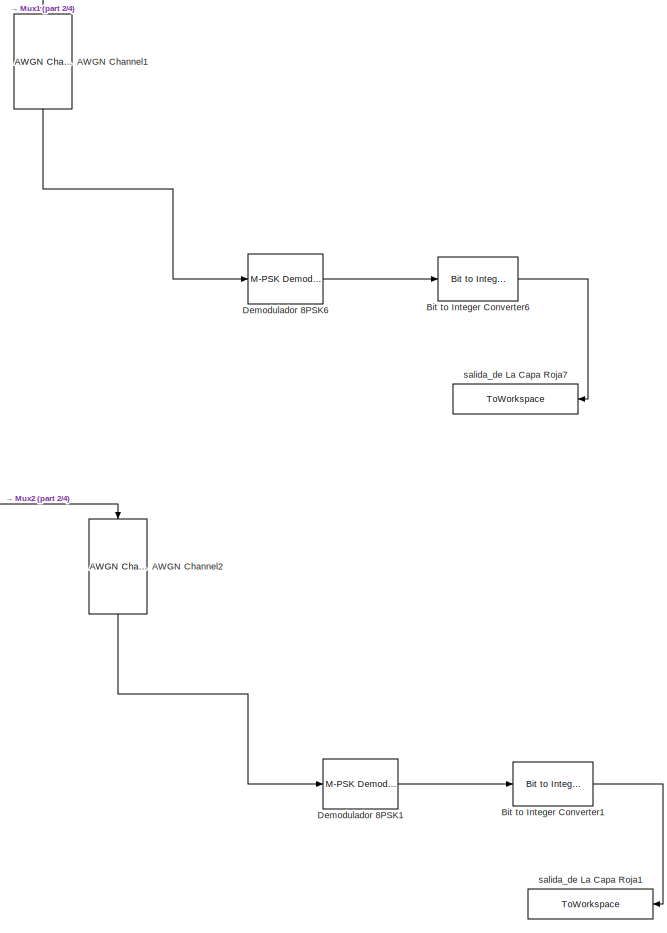
[diagram: root canvas - part 1/4, top right region]
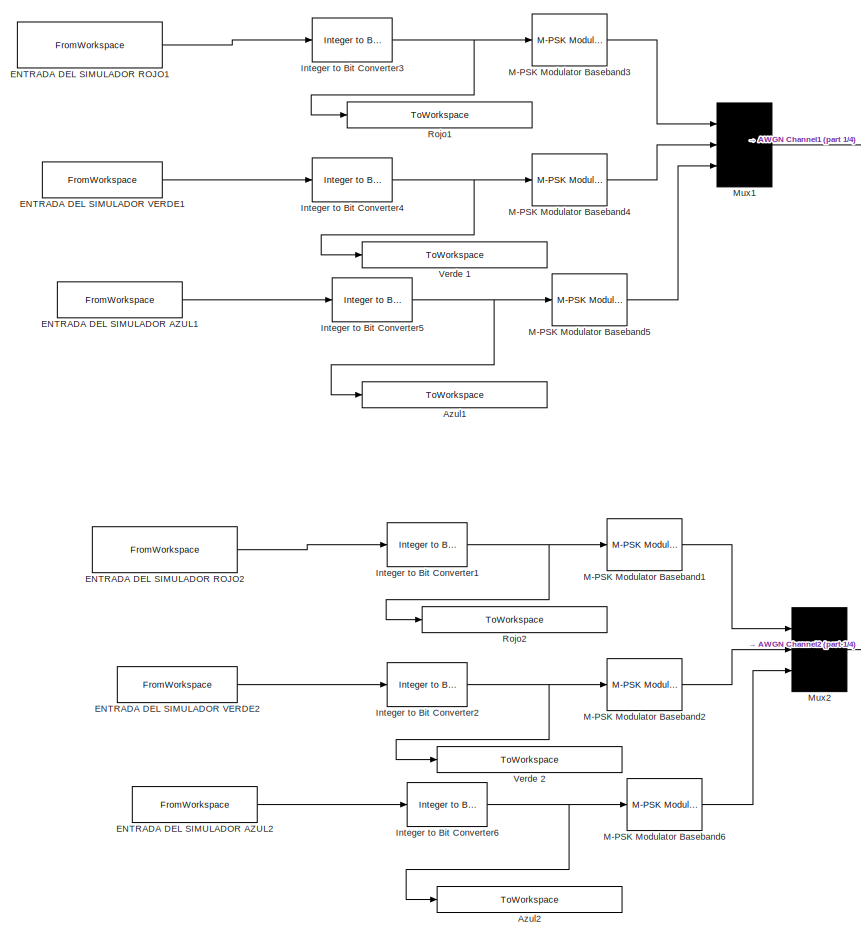
[diagram: root canvas - part 2/4, top left region]
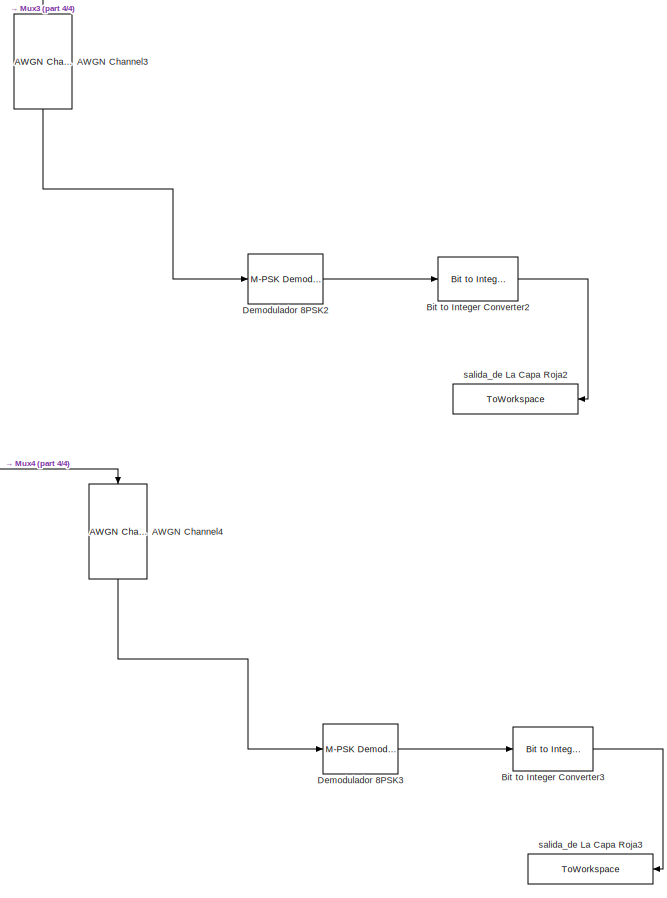
[diagram: root canvas - part 3/4, bottom right region]
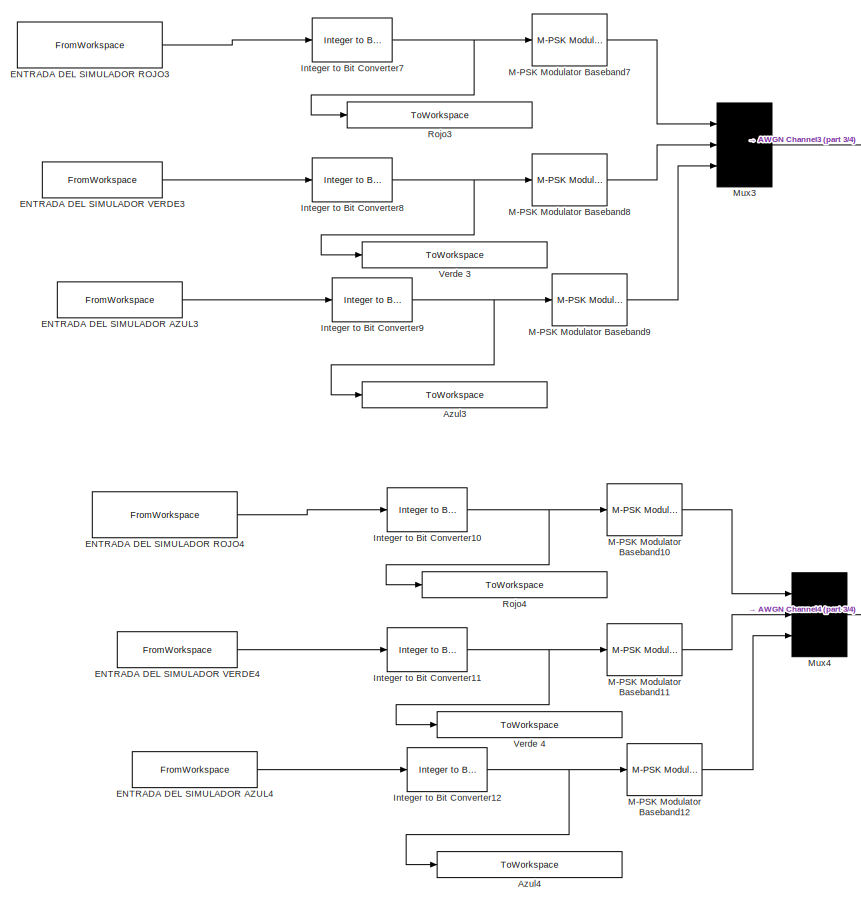
[diagram: root canvas - part 4/4, bottom left region]
MODEL slx_5f29112e5b61
KIND model
CONFIG AbsTol = auto
CONFIG FixedStep = auto
CONFIG MaxStep = auto
CONFIG MinStep = auto
CONFIG RelTol = 1e-3
CONFIG SampleTimeConstraint = Unconstrained
CONFIG Solver = VariableStepAuto
CONFIG SolverMode = Auto
CONFIG SolverName = VariableStepAuto
CONFIG StartTime = 0.0
CONFIG StopTime = 420800
BLOCK [Reference] AWGN Channel1  REF=commchan3/AWGN
Channel
  Ports = [1, 1]
  SourceBlock = commchan3/AWGN\nChannel
  SourceType = AWGN Channel
  UserDataPersistent = on
BLOCK [Reference] AWGN Channel2  REF=commchan3/AWGN
Channel
  Ports = [1, 1]
  SourceBlock = commchan3/AWGN\nChannel
  SourceType = AWGN Channel
  UserDataPersistent = on
BLOCK [Reference] AWGN Channel3  REF=commchan3/AWGN
Channel
  Ports = [1, 1]
  SourceBlock = commchan3/AWGN\nChannel
  SourceType = AWGN Channel
  UserDataPersistent = on
BLOCK [Reference] AWGN Channel4  REF=commchan3/AWGN
Channel
  Ports = [1, 1]
  SourceBlock = commchan3/AWGN\nChannel
  SourceType = AWGN Channel
  UserDataPersistent = on
BLOCK [ToWorkspace] Azul1
  FixptAsFi = on
  MaxDataPoints = inf
  Ports = [1]
  SampleTime = -1
  Save2DSignal = 2-D array (concatenate along first dimension)
  VariableName = Salida_Cuantificador_Azul1
BLOCK [ToWorkspace] Azul2
  FixptAsFi = on
  MaxDataPoints = inf
  Ports = [1]
  SampleTime = -1
  Save2DSignal = 2-D array (concatenate along first dimension)
  VariableName = Salida_Cuantificador_Azul
BLOCK [ToWorkspace] Azul3
  FixptAsFi = on
  MaxDataPoints = inf
  Ports = [1]
  SampleTime = -1
  Save2DSignal = 2-D array (concatenate along first dimension)
  VariableName = Salida_Cuantificador_Azul2
BLOCK [ToWorkspace] Azul4
  FixptAsFi = on
  MaxDataPoints = inf
  Ports = [1]
  SampleTime = -1
  Save2DSignal = 2-D array (concatenate along first dimension)
  VariableName = Salida_Cuantificador_Azul3
BLOCK [Reference] Bit to Integer Converter1  REF=commutil2/Bit to Integer
Converter
  Ports = [1, 1]
  SourceBlock = commutil2/Bit to Integer\nConverter
  SourceType = Bit to Integer Converter
BLOCK [Reference] Bit to Integer Converter2  REF=commutil2/Bit to Integer
Converter
  Ports = [1, 1]
  SourceBlock = commutil2/Bit to Integer\nConverter
  SourceType = Bit to Integer Converter
BLOCK [Reference] Bit to Integer Converter3  REF=commutil2/Bit to Integer
Converter
  Ports = [1, 1]
  SourceBlock = commutil2/Bit to Integer\nConverter
  SourceType = Bit to Integer Converter
BLOCK [Reference] Bit to Integer Converter6  REF=commutil2/Bit to Integer
Converter
  Ports = [1, 1]
  SourceBlock = commutil2/Bit to Integer\nConverter
  SourceType = Bit to Integer Converter
BLOCK [Reference] Demodulador 8PSK1  REF=commdigbbndpm3/M-PSK
Demodulator
Baseband
  Ports = [1, 1]
  SourceBlock = commdigbbndpm3/M-PSK\nDemodulator\nBaseband
  SourceType = M-PSK Demodulator Baseband
BLOCK [Reference] Demodulador 8PSK2  REF=commdigbbndpm3/M-PSK
Demodulator
Baseband
  Ports = [1, 1]
  SourceBlock = commdigbbndpm3/M-PSK\nDemodulator\nBaseband
  SourceType = M-PSK Demodulator Baseband
BLOCK [Reference] Demodulador 8PSK3  REF=commdigbbndpm3/M-PSK
Demodulator
Baseband
  Ports = [1, 1]
  SourceBlock = commdigbbndpm3/M-PSK\nDemodulator\nBaseband
  SourceType = M-PSK Demodulator Baseband
BLOCK [Reference] Demodulador 8PSK6  REF=commdigbbndpm3/M-PSK
Demodulator
Baseband
  Ports = [1, 1]
  SourceBlock = commdigbbndpm3/M-PSK\nDemodulator\nBaseband
  SourceType = M-PSK Demodulator Baseband
BLOCK [FromWorkspace] ENTRADA DEL SIMULADOR AZUL1
  OutputAfterFinalValue = Holding final value
  SampleTime = 1
  VariableName = Imagen_BEntrada
BLOCK [FromWorkspace] ENTRADA DEL SIMULADOR AZUL2
  OutputAfterFinalValue = Holding final value
  SampleTime = 1
  VariableName = Imagen_BEntrada
BLOCK [FromWorkspace] ENTRADA DEL SIMULADOR AZUL3
  OutputAfterFinalValue = Holding final value
  SampleTime = 1
  VariableName = Imagen_BEntrada
BLOCK [FromWorkspace] ENTRADA DEL SIMULADOR AZUL4
  OutputAfterFinalValue = Holding final value
  SampleTime = 1
  VariableName = Imagen_BEntrada
BLOCK [FromWorkspace] ENTRADA DEL SIMULADOR ROJO1
  OutputAfterFinalValue = Holding final value
  SampleTime = 1
  VariableName = Imagen_REntrada
BLOCK [FromWorkspace] ENTRADA DEL SIMULADOR ROJO2
  OutputAfterFinalValue = Holding final value
  SampleTime = 1
  VariableName = Imagen_REntrada
BLOCK [FromWorkspace] ENTRADA DEL SIMULADOR ROJO3
  OutputAfterFinalValue = Holding final value
  SampleTime = 1
  VariableName = Imagen_REntrada
BLOCK [FromWorkspace] ENTRADA DEL SIMULADOR ROJO4
  OutputAfterFinalValue = Holding final value
  SampleTime = 1
  VariableName = Imagen_REntrada
BLOCK [FromWorkspace] ENTRADA DEL SIMULADOR VERDE1
  OutputAfterFinalValue = Holding final value
  SampleTime = 1
  VariableName = Imagen_GEntrada
BLOCK [FromWorkspace] ENTRADA DEL SIMULADOR VERDE2
  OutputAfterFinalValue = Holding final value
  SampleTime = 1
  VariableName = Imagen_GEntrada
BLOCK [FromWorkspace] ENTRADA DEL SIMULADOR VERDE3
  OutputAfterFinalValue = Holding final value
  SampleTime = 1
  VariableName = Imagen_GEntrada
BLOCK [FromWorkspace] ENTRADA DEL SIMULADOR VERDE4
  OutputAfterFinalValue = Holding final value
  SampleTime = 1
  VariableName = Imagen_GEntrada
BLOCK [Reference] Integer to Bit Converter1  REF=commutil2/Integer to Bit
Converter
  Ports = [1, 1]
  SourceBlock = commutil2/Integer to Bit\nConverter
  SourceType = Integer to Bit Converter
BLOCK [Reference] Integer to Bit Converter10  REF=commutil2/Integer to Bit
Converter
  Ports = [1, 1]
  SourceBlock = commutil2/Integer to Bit\nConverter
  SourceType = Integer to Bit Converter
BLOCK [Reference] Integer to Bit Converter11  REF=commutil2/Integer to Bit
Converter
  Ports = [1, 1]
  SourceBlock = commutil2/Integer to Bit\nConverter
  SourceType = Integer to Bit Converter
BLOCK [Reference] Integer to Bit Converter12  REF=commutil2/Integer to Bit
Converter
  Ports = [1, 1]
  SourceBlock = commutil2/Integer to Bit\nConverter
  SourceType = Integer to Bit Converter
BLOCK [Reference] Integer to Bit Converter2  REF=commutil2/Integer to Bit
Converter
  Ports = [1, 1]
  SourceBlock = commutil2/Integer to Bit\nConverter
  SourceType = Integer to Bit Converter
BLOCK [Reference] Integer to Bit Converter3  REF=commutil2/Integer to Bit
Converter
  Ports = [1, 1]
  SourceBlock = commutil2/Integer to Bit\nConverter
  SourceType = Integer to Bit Converter
BLOCK [Reference] Integer to Bit Converter4  REF=commutil2/Integer to Bit
Converter
  Ports = [1, 1]
  SourceBlock = commutil2/Integer to Bit\nConverter
  SourceType = Integer to Bit Converter
BLOCK [Reference] Integer to Bit Converter5  REF=commutil2/Integer to Bit
Converter
  Ports = [1, 1]
  SourceBlock = commutil2/Integer to Bit\nConverter
  SourceType = Integer to Bit Converter
BLOCK [Reference] Integer to Bit Converter6  REF=commutil2/Integer to Bit
Converter
  Ports = [1, 1]
  SourceBlock = commutil2/Integer to Bit\nConverter
  SourceType = Integer to Bit Converter
BLOCK [Reference] Integer to Bit Converter7  REF=commutil2/Integer to Bit
Converter
  Ports = [1, 1]
  SourceBlock = commutil2/Integer to Bit\nConverter
  SourceType = Integer to Bit Converter
BLOCK [Reference] Integer to Bit Converter8  REF=commutil2/Integer to Bit
Converter
  Ports = [1, 1]
  SourceBlock = commutil2/Integer to Bit\nConverter
  SourceType = Integer to Bit Converter
BLOCK [Reference] Integer to Bit Converter9  REF=commutil2/Integer to Bit
Converter
  Ports = [1, 1]
  SourceBlock = commutil2/Integer to Bit\nConverter
  SourceType = Integer to Bit Converter
BLOCK [Reference] M-PSK Modulator Baseband1  REF=commdigbbndpm3/M-PSK
Modulator
Baseband
  Ports = [1, 1]
  SourceBlock = commdigbbndpm3/M-PSK\nModulator\nBaseband
  SourceType = M-PSK Modulator Baseband
BLOCK [Reference] M-PSK Modulator Baseband10  REF=commdigbbndpm3/M-PSK
Modulator
Baseband
  Ports = [1, 1]
  SourceBlock = commdigbbndpm3/M-PSK\nModulator\nBaseband
  SourceType = M-PSK Modulator Baseband
BLOCK [Reference] M-PSK Modulator Baseband11  REF=commdigbbndpm3/M-PSK
Modulator
Baseband
  Ports = [1, 1]
  SourceBlock = commdigbbndpm3/M-PSK\nModulator\nBaseband
  SourceType = M-PSK Modulator Baseband
BLOCK [Reference] M-PSK Modulator Baseband12  REF=commdigbbndpm3/M-PSK
Modulator
Baseband
  Ports = [1, 1]
  SourceBlock = commdigbbndpm3/M-PSK\nModulator\nBaseband
  SourceType = M-PSK Modulator Baseband
BLOCK [Reference] M-PSK Modulator Baseband2  REF=commdigbbndpm3/M-PSK
Modulator
Baseband
  Ports = [1, 1]
  SourceBlock = commdigbbndpm3/M-PSK\nModulator\nBaseband
  SourceType = M-PSK Modulator Baseband
BLOCK [Reference] M-PSK Modulator Baseband3  REF=commdigbbndpm3/M-PSK
Modulator
Baseband
  Ports = [1, 1]
  SourceBlock = commdigbbndpm3/M-PSK\nModulator\nBaseband
  SourceType = M-PSK Modulator Baseband
BLOCK [Reference] M-PSK Modulator Baseband4  REF=commdigbbndpm3/M-PSK
Modulator
Baseband
  Ports = [1, 1]
  SourceBlock = commdigbbndpm3/M-PSK\nModulator\nBaseband
  SourceType = M-PSK Modulator Baseband
BLOCK [Reference] M-PSK Modulator Baseband5  REF=commdigbbndpm3/M-PSK
Modulator
Baseband
  Ports = [1, 1]
  SourceBlock = commdigbbndpm3/M-PSK\nModulator\nBaseband
  SourceType = M-PSK Modulator Baseband
BLOCK [Reference] M-PSK Modulator Baseband6  REF=commdigbbndpm3/M-PSK
Modulator
Baseband
  Ports = [1, 1]
  SourceBlock = commdigbbndpm3/M-PSK\nModulator\nBaseband
  SourceType = M-PSK Modulator Baseband
BLOCK [Reference] M-PSK Modulator Baseband7  REF=commdigbbndpm3/M-PSK
Modulator
Baseband
  Ports = [1, 1]
  SourceBlock = commdigbbndpm3/M-PSK\nModulator\nBaseband
  SourceType = M-PSK Modulator Baseband
BLOCK [Reference] M-PSK Modulator Baseband8  REF=commdigbbndpm3/M-PSK
Modulator
Baseband
  Ports = [1, 1]
  SourceBlock = commdigbbndpm3/M-PSK\nModulator\nBaseband
  SourceType = M-PSK Modulator Baseband
BLOCK [Reference] M-PSK Modulator Baseband9  REF=commdigbbndpm3/M-PSK
Modulator
Baseband
  Ports = [1, 1]
  SourceBlock = commdigbbndpm3/M-PSK\nModulator\nBaseband
  SourceType = M-PSK Modulator Baseband
BLOCK [Mux] Mux1
  DisplayOption = signals
  Inputs = 3
  Ports = [3, 1]
BLOCK [Mux] Mux2
  DisplayOption = signals
  Inputs = 3
  Ports = [3, 1]
BLOCK [Mux] Mux3
  DisplayOption = signals
  Inputs = 3
  Ports = [3, 1]
BLOCK [Mux] Mux4
  DisplayOption = signals
  Inputs = 3
  Ports = [3, 1]
BLOCK [ToWorkspace] Rojo1
  FixptAsFi = on
  MaxDataPoints = inf
  Ports = [1]
  SampleTime = -1
  Save2DSignal = 2-D array (concatenate along first dimension)
  VariableName = Salida_Cuantificador_Rojo1
BLOCK [ToWorkspace] Rojo2
  FixptAsFi = on
  MaxDataPoints = inf
  Ports = [1]
  SampleTime = -1
  Save2DSignal = 2-D array (concatenate along first dimension)
  VariableName = Salida_Cuantificador_Rojo
BLOCK [ToWorkspace] Rojo3
  FixptAsFi = on
  MaxDataPoints = inf
  Ports = [1]
  SampleTime = -1
  Save2DSignal = 2-D array (concatenate along first dimension)
  VariableName = Salida_Cuantificador_Rojo2
BLOCK [ToWorkspace] Rojo4
  FixptAsFi = on
  MaxDataPoints = inf
  Ports = [1]
  SampleTime = -1
  Save2DSignal = 2-D array (concatenate along first dimension)
  VariableName = Salida_Cuantificador_Rojo3
BLOCK [ToWorkspace] Verde 1
  FixptAsFi = on
  MaxDataPoints = inf
  Ports = [1]
  SampleTime = -1
  Save2DSignal = 2-D array (concatenate along first dimension)
  VariableName = Salida_Cuantificador_Verde1
BLOCK [ToWorkspace] Verde 2
  FixptAsFi = on
  MaxDataPoints = inf
  Ports = [1]
  SampleTime = -1
  Save2DSignal = 2-D array (concatenate along first dimension)
  VariableName = Salida_Cuantificador_Verde
BLOCK [ToWorkspace] Verde 3
  FixptAsFi = on
  MaxDataPoints = inf
  Ports = [1]
  SampleTime = -1
  Save2DSignal = 2-D array (concatenate along first dimension)
  VariableName = Salida_Cuantificador_Verde2
BLOCK [ToWorkspace] Verde 4
  FixptAsFi = on
  MaxDataPoints = inf
  Ports = [1]
  SampleTime = -1
  Save2DSignal = 2-D array (concatenate along first dimension)
  VariableName = Salida_Cuantificador_Verde3
BLOCK [ToWorkspace] salida_de La Capa Roja1
  FixptAsFi = on
  MaxDataPoints = inf
  Ports = [1]
  SampleTime = 1
  Save2DSignal = 2-D array (concatenate along first dimension)
  VariableName = imagenTOTAL60
BLOCK [ToWorkspace] salida_de La Capa Roja2
  FixptAsFi = on
  MaxDataPoints = inf
  Ports = [1]
  SampleTime = 1
  Save2DSignal = 2-D array (concatenate along first dimension)
  VariableName = imagenTOTAL50
BLOCK [ToWorkspace] salida_de La Capa Roja3
  FixptAsFi = on
  MaxDataPoints = inf
  Ports = [1]
  SampleTime = 1
  Save2DSignal = 2-D array (concatenate along first dimension)
  VariableName = imagenTOTAL25
BLOCK [ToWorkspace] salida_de La Capa Roja7
  FixptAsFi = on
  MaxDataPoints = inf
  Ports = [1]
  SampleTime = 1
  Save2DSignal = 2-D array (concatenate along first dimension)
  VariableName = imagenTOTAL90
LINE AWGN Channel1:1 -> Demodulador 8PSK6:1
LINE AWGN Channel2:1 -> Demodulador 8PSK1:1
LINE AWGN Channel3:1 -> Demodulador 8PSK2:1
LINE AWGN Channel4:1 -> Demodulador 8PSK3:1
LINE Bit to Integer Converter1:1 -> salida_de La Capa Roja1:1
LINE Bit to Integer Converter2:1 -> salida_de La Capa Roja2:1
LINE Bit to Integer Converter3:1 -> salida_de La Capa Roja3:1
LINE Bit to Integer Converter6:1 -> salida_de La Capa Roja7:1
LINE Demodulador 8PSK1:1 -> Bit to Integer Converter1:1
LINE Demodulador 8PSK2:1 -> Bit to Integer Converter2:1
LINE Demodulador 8PSK3:1 -> Bit to Integer Converter3:1
LINE Demodulador 8PSK6:1 -> Bit to Integer Converter6:1
LINE ENTRADA DEL SIMULADOR AZUL1:1 -> Integer to Bit Converter5:1
LINE ENTRADA DEL SIMULADOR AZUL2:1 -> Integer to Bit Converter6:1
LINE ENTRADA DEL SIMULADOR AZUL3:1 -> Integer to Bit Converter9:1
LINE ENTRADA DEL SIMULADOR AZUL4:1 -> Integer to Bit Converter12:1
LINE ENTRADA DEL SIMULADOR ROJO1:1 -> Integer to Bit Converter3:1
LINE ENTRADA DEL SIMULADOR ROJO2:1 -> Integer to Bit Converter1:1
LINE ENTRADA DEL SIMULADOR ROJO3:1 -> Integer to Bit Converter7:1
LINE ENTRADA DEL SIMULADOR ROJO4:1 -> Integer to Bit Converter10:1
LINE ENTRADA DEL SIMULADOR VERDE1:1 -> Integer to Bit Converter4:1
LINE ENTRADA DEL SIMULADOR VERDE2:1 -> Integer to Bit Converter2:1
LINE ENTRADA DEL SIMULADOR VERDE3:1 -> Integer to Bit Converter8:1
LINE ENTRADA DEL SIMULADOR VERDE4:1 -> Integer to Bit Converter11:1
NET Integer to Bit Converter10:1 -> M-PSK Modulator Baseband10:1, Rojo4:1
NET Integer to Bit Converter11:1 -> M-PSK Modulator Baseband11:1, Verde 4:1
NET Integer to Bit Converter12:1 -> Azul4:1, M-PSK Modulator Baseband12:1
NET Integer to Bit Converter1:1 -> M-PSK Modulator Baseband1:1, Rojo2:1
NET Integer to Bit Converter2:1 -> M-PSK Modulator Baseband2:1, Verde 2:1
NET Integer to Bit Converter3:1 -> M-PSK Modulator Baseband3:1, Rojo1:1
NET Integer to Bit Converter4:1 -> M-PSK Modulator Baseband4:1, Verde 1:1
NET Integer to Bit Converter5:1 -> Azul1:1, M-PSK Modulator Baseband5:1
NET Integer to Bit Converter6:1 -> Azul2:1, M-PSK Modulator Baseband6:1
NET Integer to Bit Converter7:1 -> M-PSK Modulator Baseband7:1, Rojo3:1
NET Integer to Bit Converter8:1 -> M-PSK Modulator Baseband8:1, Verde 3:1
NET Integer to Bit Converter9:1 -> Azul3:1, M-PSK Modulator Baseband9:1
LINE M-PSK Modulator Baseband10:1 -> Mux4:1
LINE M-PSK Modulator Baseband11:1 -> Mux4:2
LINE M-PSK Modulator Baseband12:1 -> Mux4:3
LINE M-PSK Modulator Baseband1:1 -> Mux2:1
LINE M-PSK Modulator Baseband2:1 -> Mux2:2
LINE M-PSK Modulator Baseband3:1 -> Mux1:1
LINE M-PSK Modulator Baseband4:1 -> Mux1:2
LINE M-PSK Modulator Baseband5:1 -> Mux1:3
LINE M-PSK Modulator Baseband6:1 -> Mux2:3
LINE M-PSK Modulator Baseband7:1 -> Mux3:1
LINE M-PSK Modulator Baseband8:1 -> Mux3:2
LINE M-PSK Modulator Baseband9:1 -> Mux3:3
LINE Mux1:1 -> AWGN Channel1:1
LINE Mux2:1 -> AWGN Channel2:1
LINE Mux3:1 -> AWGN Channel3:1
LINE Mux4:1 -> AWGN Channel4:1
note: NET lines group one-source signal fan-out (src -> all destinations, sorted); 1:1 wires keep LINE
